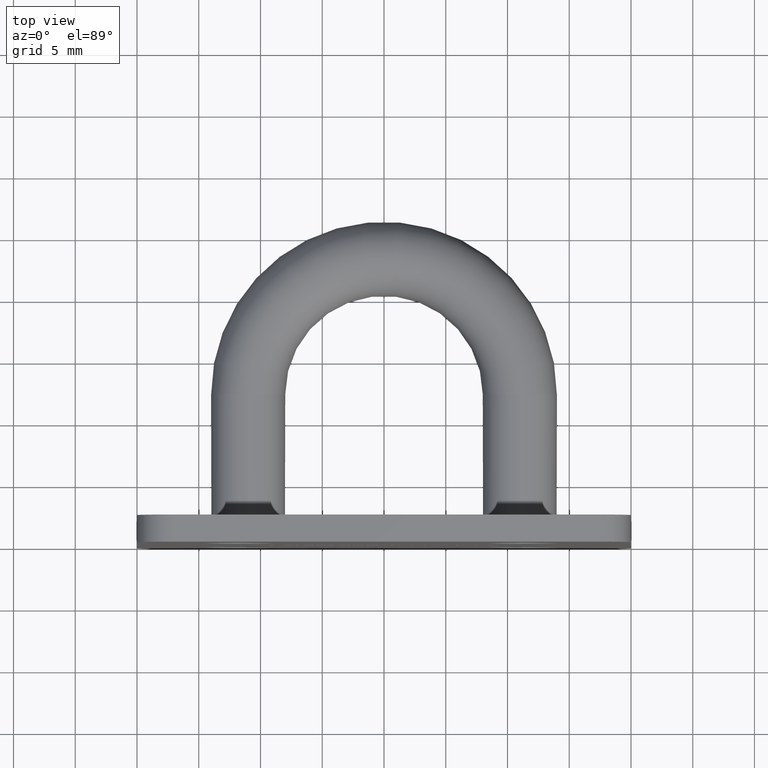
[diagram: clean part render]
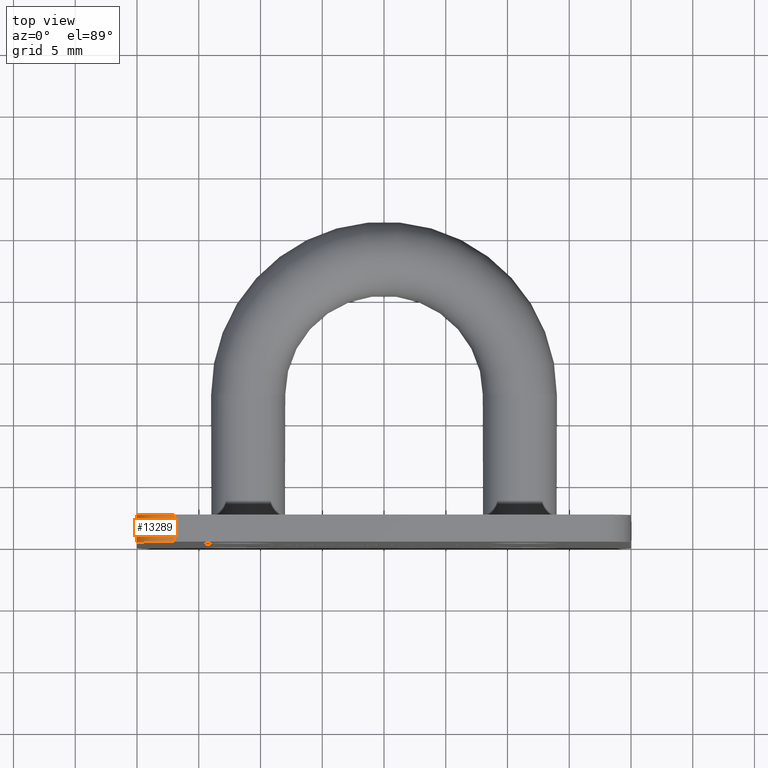
[diagram: same view with one face highlighted and labeled with its STEP entity id]
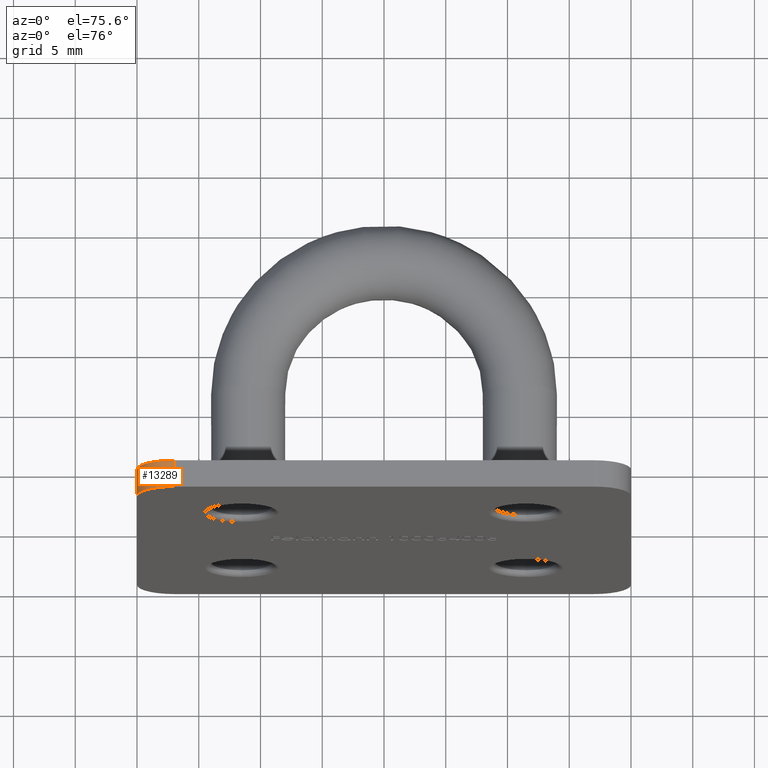
[diagram: same view with one face highlighted and labeled with its STEP entity id]
A machine part, top view. The second image highlights one B-rep face of the part: STEP entity #13289.
A second angle (auxiliary view) of the same face is appended — the face is thin or edge-on in the first view.
In plain terms, the highlighted cylindrical surface (partial cylindrical patch) has radius 3 mm, axis along (0, -1, 0).
Its self-contained STEP definition (entity closure, byte-faithful):
#55 = AXIS2_PLACEMENT_3D ( 'NONE', #9878, #10903, #14372 ) ;
#143 = ORIENTED_EDGE ( 'NONE', *, *, #2750, .F. ) ;
#326 = ORIENTED_EDGE ( 'NONE', *, *, #9851, .F. ) ;
#421 = CARTESIAN_POINT ( 'NONE',  ( -19.99999999999999600, 2.200000000000000200, 14.50000000000000200 ) ) ;
#782 = AXIS2_PLACEMENT_3D ( 'NONE', #7549, #4265, #13327 ) ;
#939 = VERTEX_POINT ( 'NONE', #14174 ) ;
#1021 = VECTOR ( 'NONE', #13236, 1000.000000000000000 ) ;
#1741 = ORIENTED_EDGE ( 'NONE', *, *, #8469, .F. ) ;
#2022 = FACE_OUTER_BOUND ( 'NONE', #11347, .T. ) ;
#2084 = LINE ( 'NONE', #10923, #1021 ) ;
#2555 = CIRCLE ( 'NONE', #782, 2.999999999999999100 ) ;
#2750 = EDGE_CURVE ( 'NONE', #3472, #2809, #13231, .T. ) ;
#2768 = EDGE_CURVE ( 'NONE', #3677, #939, #2555, .T. ) ;
#2809 = VERTEX_POINT ( 'NONE', #5242 ) ;
#3167 = AXIS2_PLACEMENT_3D ( 'NONE', #8179, #13919, #13765 ) ;
#3472 = VERTEX_POINT ( 'NONE', #421 ) ;
#3677 = VERTEX_POINT ( 'NONE', #10258 ) ;
#4265 = DIRECTION ( 'NONE',  ( 0.0000000000000000000, -1.000000000000000000, 0.0000000000000000000 ) ) ;
#5242 = CARTESIAN_POINT ( 'NONE',  ( -17.00000000000000000, 2.200000000000000200, 17.50000000000000400 ) ) ;
#6537 = ORIENTED_EDGE ( 'NONE', *, *, #2768, .F. ) ;
#7453 = CARTESIAN_POINT ( 'NONE',  ( -19.99999999999999600, 2.200000000000000200, 14.50000000000000200 ) ) ;
#7549 = CARTESIAN_POINT ( 'NONE',  ( -17.00000000000000000, 0.0000000000000000000, 14.50000000000000500 ) ) ;
#8179 = CARTESIAN_POINT ( 'NONE',  ( -17.00000000000000000, 2.200000000000000200, 14.50000000000000500 ) ) ;
#8469 = EDGE_CURVE ( 'NONE', #939, #3472, #10306, .T. ) ;
#9843 = DIRECTION ( 'NONE',  ( -0.0000000000000000000, 1.000000000000000000, -0.0000000000000000000 ) ) ;
#9851 = EDGE_CURVE ( 'NONE', #2809, #3677, #2084, .T. ) ;
#9878 = CARTESIAN_POINT ( 'NONE',  ( -17.00000000000000000, 2.200000000000000200, 14.50000000000000500 ) ) ;
#10258 = CARTESIAN_POINT ( 'NONE',  ( -17.00000000000000000, 0.0000000000000000000, 17.50000000000000400 ) ) ;
#10306 = LINE ( 'NONE', #7453, #14016 ) ;
#10903 = DIRECTION ( 'NONE',  ( -0.0000000000000000000, 1.000000000000000000, -0.0000000000000000000 ) ) ;
#10923 = CARTESIAN_POINT ( 'NONE',  ( -17.00000000000000000, 2.200000000000000200, 17.50000000000000400 ) ) ;
#11347 = EDGE_LOOP ( 'NONE', ( #143, #1741, #6537, #326 ) ) ;
#13228 = CYLINDRICAL_SURFACE ( 'NONE', #3167, 2.999999999999999100 ) ;
#13231 = CIRCLE ( 'NONE', #55, 2.999999999999999100 ) ;
#13236 = DIRECTION ( 'NONE',  ( 0.0000000000000000000, -1.000000000000000000, 0.0000000000000000000 ) ) ;
#13289 = ADVANCED_FACE ( 'NONE', ( #2022 ), #13228, .T. ) ;
#13327 = DIRECTION ( 'NONE',  ( 0.0000000000000000000, 0.0000000000000000000, -1.000000000000000000 ) ) ;
#13765 = DIRECTION ( 'NONE',  ( 0.0000000000000000000, 0.0000000000000000000, -1.000000000000000000 ) ) ;
#13919 = DIRECTION ( 'NONE',  ( 0.0000000000000000000, -1.000000000000000000, 0.0000000000000000000 ) ) ;
#14016 = VECTOR ( 'NONE', #9843, 1000.000000000000000 ) ;
#14174 = CARTESIAN_POINT ( 'NONE',  ( -19.99999999999999600, 0.0000000000000000000, 14.50000000000000200 ) ) ;
#14372 = DIRECTION ( 'NONE',  ( 1.156482317317871700E-015, 0.0000000000000000000, -1.000000000000000000 ) ) ;